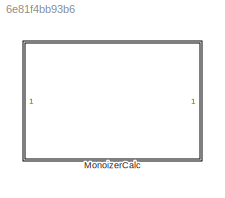
MODEL slx_6e81f4bb93b6
KIND model
CONFIG AbsTol = auto
CONFIG EnableMultiTasking = off
CONFIG FixedStep = auto
CONFIG MaxStep = auto
CONFIG MinStep = auto
CONFIG RelTol = 1e-3
CONFIG SampleTimeConstraint = Unconstrained
CONFIG SolverName = VariableStepAuto
CONFIG StartTime = 0.0
CONFIG StopTime = 10.0
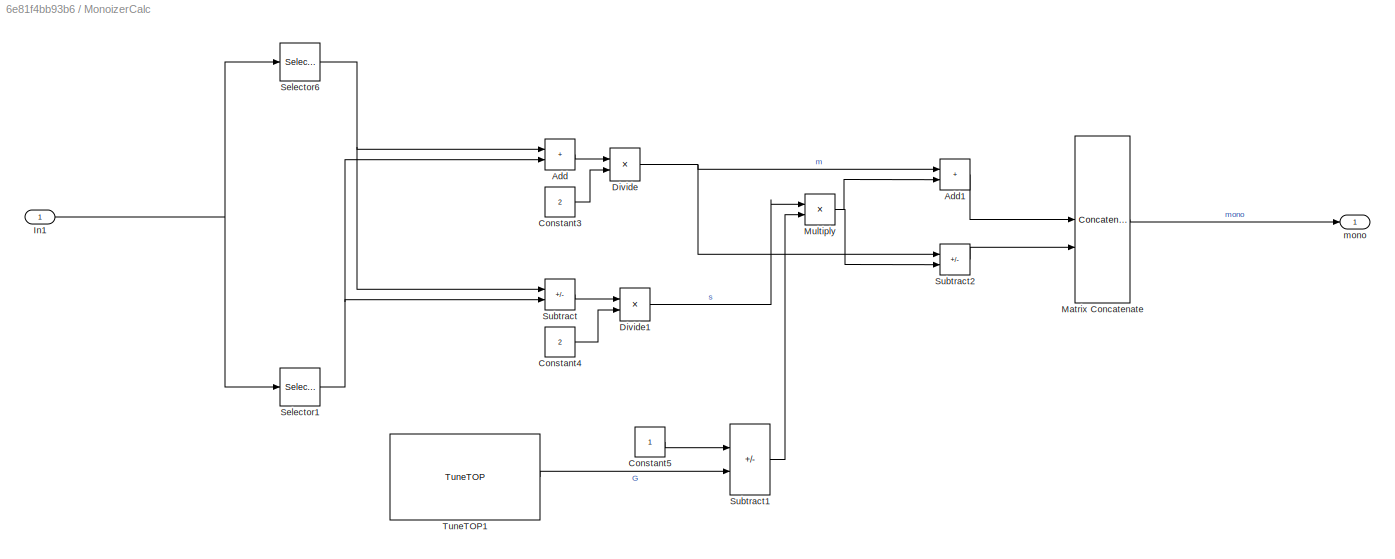
BLOCK [SubSystem] MonoizerCalc
BLOCK [Sum] MonoizerCalc/Add
  IconShape = rectangular
BLOCK [Sum] MonoizerCalc/Add1
  IconShape = rectangular
BLOCK [Constant] MonoizerCalc/Constant3
  OutDataTypeStr = single
  Value = 2
BLOCK [Constant] MonoizerCalc/Constant4
  OutDataTypeStr = single
  Value = 2
BLOCK [Constant] MonoizerCalc/Constant5
  OutDataTypeStr = single
BLOCK [Product] MonoizerCalc/Divide
  Inputs = */
  RndMeth = Zero
  SaturateOnIntegerOverflow = on
BLOCK [Product] MonoizerCalc/Divide1
  Inputs = */
  RndMeth = Zero
  SaturateOnIntegerOverflow = on
BLOCK [Inport] MonoizerCalc/In1
BLOCK [Concatenate] MonoizerCalc/Matrix Concatenate
  ConcatenateDimension = 2
  Mode = Multidimensional array
BLOCK [Product] MonoizerCalc/Multiply
BLOCK [Selector] MonoizerCalc/Selector1
  IndexOptions = Select all,Index vector (dialog)
  Indices = 4,2
  InputPortWidth = 3
  NumberOfDimensions = 2
  OutputSizes = 1,1
BLOCK [Selector] MonoizerCalc/Selector6
  IndexOptions = Select all,Index vector (dialog)
  Indices = 4,1
  InputPortWidth = 3
  NumberOfDimensions = 2
  OutputSizes = 1,1
BLOCK [Sum] MonoizerCalc/Subtract
  IconShape = rectangular
  Inputs = +-
BLOCK [Sum] MonoizerCalc/Subtract1
  IconShape = rectangular
  Inputs = +-
BLOCK [Sum] MonoizerCalc/Subtract2
  IconShape = rectangular
  Inputs = +-
BLOCK [Reference] MonoizerCalc/TuneTOP1  REF=TuneVar/TuneTOP
  SourceBlock = TuneVar/TuneTOP
  SourceProductName = Bose Talaria
  SourceType = Talaria Trivial Tune TOP
BLOCK [Outport] MonoizerCalc/mono
LINE MonoizerCalc/Add1:1 -> MonoizerCalc/Matrix Concatenate:1
LINE MonoizerCalc/Add:1 -> MonoizerCalc/Divide:1
LINE MonoizerCalc/Constant3:1 -> MonoizerCalc/Divide:2
LINE MonoizerCalc/Constant4:1 -> MonoizerCalc/Divide1:2
LINE MonoizerCalc/Constant5:1 -> MonoizerCalc/Subtract1:1
LINE MonoizerCalc/Divide1:1 -> MonoizerCalc/Multiply:1
NET MonoizerCalc/Divide:1 -> MonoizerCalc/Add1:1, MonoizerCalc/Subtract2:1
NET MonoizerCalc/In1:1 -> MonoizerCalc/Selector1:1, MonoizerCalc/Selector6:1
LINE MonoizerCalc/Matrix Concatenate:1 -> MonoizerCalc/mono:1
NET MonoizerCalc/Multiply:1 -> MonoizerCalc/Add1:2, MonoizerCalc/Subtract2:2
NET MonoizerCalc/Selector1:1 -> MonoizerCalc/Add:2, MonoizerCalc/Subtract:2
NET MonoizerCalc/Selector6:1 -> MonoizerCalc/Add:1, MonoizerCalc/Subtract:1
LINE MonoizerCalc/Subtract1:1 -> MonoizerCalc/Multiply:2
LINE MonoizerCalc/Subtract2:1 -> MonoizerCalc/Matrix Concatenate:2
LINE MonoizerCalc/Subtract:1 -> MonoizerCalc/Divide1:1
LINE MonoizerCalc/TuneTOP1:1 -> MonoizerCalc/Subtract1:2
note: NET lines group one-source signal fan-out (src -> all destinations, sorted); 1:1 wires keep LINE
